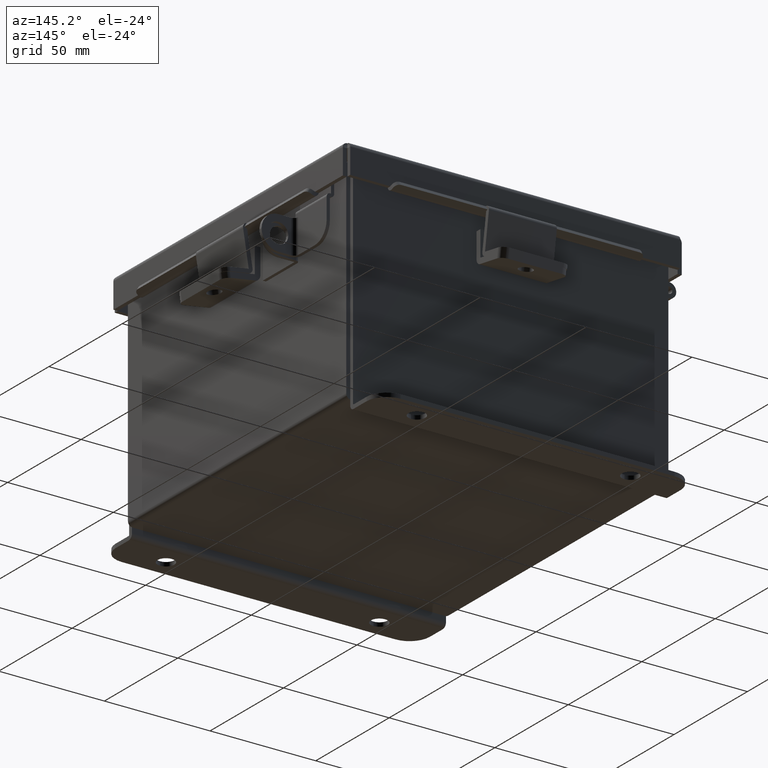
[diagram: clean part render]
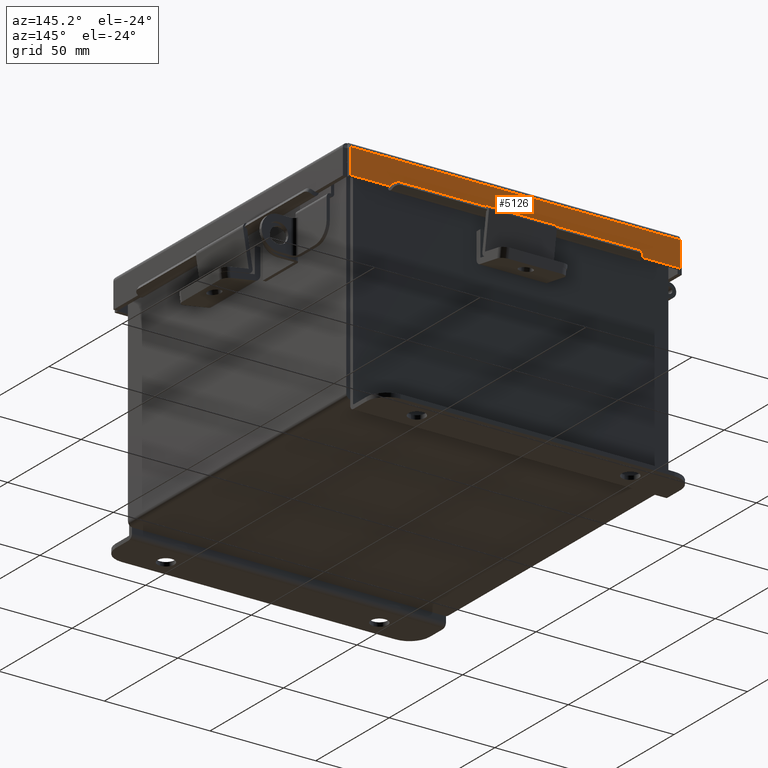
[diagram: same view with one face highlighted and labeled with its STEP entity id]
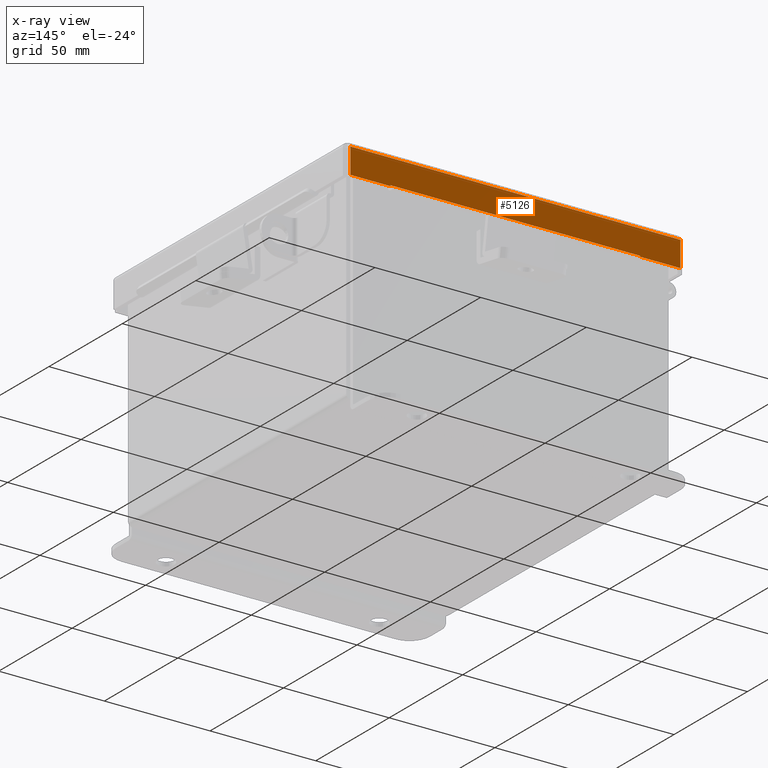
[diagram: x-ray of the same camera — body ghosted, the highlighted face saturated]
A machine part, auxiliary view. The second image highlights one B-rep face of the part: STEP entity #5126.
The next image is the same camera in x-ray: the body ghosted, the highlighted face saturated — about 0% of this face is hidden behind the body in this view.
In plain terms, the highlighted planar face has unit normal (-0, -1, -0).
Its self-contained STEP definition (entity closure, byte-faithful):
#766 = VECTOR ( 'NONE', #6378, 39.37007874015748100 ) ;
#876 = CARTESIAN_POINT ( 'NONE',  ( -2.324478932188135200, 3.156250000000001800, 0.4717115427318805400 ) ) ;
#879 = ORIENTED_EDGE ( 'NONE', *, *, #11664, .T. ) ;
#958 = DIRECTION ( 'NONE',  ( -1.000000000000000000, -0.0000000000000000000, -0.0000000000000000000 ) ) ;
#1081 = FACE_OUTER_BOUND ( 'NONE', #2202, .T. ) ;
#1619 = VECTOR ( 'NONE', #8709, 39.37007874015748100 ) ;
#2202 = EDGE_LOOP ( 'NONE', ( #6027, #879, #9303, #3637, #7273, #8013, #11763, #4725 ) ) ;
#2248 = VECTOR ( 'NONE', #7475, 39.37007874015748100 ) ;
#2509 = EDGE_CURVE ( 'NONE', #3828, #4384, #12108, .T. ) ;
#3162 = CARTESIAN_POINT ( 'NONE',  ( 2.324478932188134700, 3.156250000000002700, 0.4717115427318805400 ) ) ;
#3375 = EDGE_CURVE ( 'NONE', #4517, #11753, #5414, .T. ) ;
#3403 = CARTESIAN_POINT ( 'NONE',  ( 3.074478932188135200, 3.156250000000000000, 0.01299999999999985900 ) ) ;
#3622 = AXIS2_PLACEMENT_3D ( 'NONE', #7963, #11260, #4664 ) ;
#3637 = ORIENTED_EDGE ( 'NONE', *, *, #13452, .F. ) ;
#3686 = EDGE_CURVE ( 'NONE', #4494, #10448, #7477, .T. ) ;
#3828 = VERTEX_POINT ( 'NONE', #7848 ) ;
#3997 = CARTESIAN_POINT ( 'NONE',  ( 7.658911662237355500E-018, 3.156250000000001800, 0.4872999999999997900 ) ) ;
#4384 = VERTEX_POINT ( 'NONE', #8647 ) ;
#4494 = VERTEX_POINT ( 'NONE', #3403 ) ;
#4517 = VERTEX_POINT ( 'NONE', #8983 ) ;
#4648 = VECTOR ( 'NONE', #11503, 39.37007874015748100 ) ;
#4664 = DIRECTION ( 'NONE',  ( 0.0000000000000000000, -3.363654414526077700E-015, -1.000000000000000000 ) ) ;
#4725 = ORIENTED_EDGE ( 'NONE', *, *, #7637, .F. ) ;
#4998 = LINE ( 'NONE', #6035, #4648 ) ;
#5108 = DIRECTION ( 'NONE',  ( 1.000000000000000000, 0.0000000000000000000, 1.081919997490797700E-017 ) ) ;
#5126 = ADVANCED_FACE ( 'NONE', ( #1081 ), #6856, .F. ) ;
#5414 = LINE ( 'NONE', #13496, #14181 ) ;
#6027 = ORIENTED_EDGE ( 'NONE', *, *, #3375, .F. ) ;
#6035 = CARTESIAN_POINT ( 'NONE',  ( 7.658911662237355500E-018, 3.156250000000001800, 0.4872999999999997900 ) ) ;
#6215 = VECTOR ( 'NONE', #5108, 39.37007874015748100 ) ;
#6310 = EDGE_CURVE ( 'NONE', #7018, #7517, #8098, .T. ) ;
#6378 = DIRECTION ( 'NONE',  ( 0.0000000000000000000, 3.363654414526077700E-015, 1.000000000000000000 ) ) ;
#6856 = PLANE ( 'NONE',  #3622 ) ;
#7018 = VERTEX_POINT ( 'NONE', #876 ) ;
#7273 = ORIENTED_EDGE ( 'NONE', *, *, #2509, .T. ) ;
#7475 = DIRECTION ( 'NONE',  ( -7.009925220121116200E-014, -7.009925220121116200E-014, 1.000000000000000000 ) ) ;
#7477 = LINE ( 'NONE', #10920, #1619 ) ;
#7517 = VERTEX_POINT ( 'NONE', #10665 ) ;
#7637 = EDGE_CURVE ( 'NONE', #11753, #7018, #14075, .T. ) ;
#7848 = CARTESIAN_POINT ( 'NONE',  ( -3.074478932188136100, 3.156250000000000000, 0.01299999999999986400 ) ) ;
#7870 = CARTESIAN_POINT ( 'NONE',  ( 3.156249999999998200, 3.156250000000000000, 0.01299999999999986400 ) ) ;
#7963 = CARTESIAN_POINT ( 'NONE',  ( 1.293110781001012800E-017, 3.156250000000000000, -1.087734790185951700E-014 ) ) ;
#8013 = ORIENTED_EDGE ( 'NONE', *, *, #11536, .T. ) ;
#8098 = LINE ( 'NONE', #11788, #2248 ) ;
#8234 = VECTOR ( 'NONE', #958, 39.37007874015748100 ) ;
#8572 = CARTESIAN_POINT ( 'NONE',  ( -3.074478932188136100, 3.156250000000000000, -1.087734790185951700E-014 ) ) ;
#8647 = CARTESIAN_POINT ( 'NONE',  ( -3.074478932188136100, 3.156250000000001800, 0.4872999999999997300 ) ) ;
#8709 = DIRECTION ( 'NONE',  ( -0.0000000000000000000, 3.363654414526077700E-015, 1.000000000000000000 ) ) ;
#8983 = CARTESIAN_POINT ( 'NONE',  ( 2.324478932188135200, 3.156250000000001800, 0.4872999999999997900 ) ) ;
#9131 = LINE ( 'NONE', #3997, #6215 ) ;
#9303 = ORIENTED_EDGE ( 'NONE', *, *, #3686, .F. ) ;
#9646 = CARTESIAN_POINT ( 'NONE',  ( 2.324478932188135200, 3.156250000000001800, 0.4717115427318805400 ) ) ;
#9968 = LINE ( 'NONE', #7870, #12516 ) ;
#10448 = VERTEX_POINT ( 'NONE', #12082 ) ;
#10665 = CARTESIAN_POINT ( 'NONE',  ( -2.324478932188136100, 3.156250000000001800, 0.4872999999999997900 ) ) ;
#10920 = CARTESIAN_POINT ( 'NONE',  ( 3.074478932188135200, 3.156250000000000000, -2.512649847650985800E-016 ) ) ;
#11260 = DIRECTION ( 'NONE',  ( -3.639204975723964100E-032, -1.000000000000000000, 3.363654414526077700E-015 ) ) ;
#11503 = DIRECTION ( 'NONE',  ( 1.000000000000000000, 0.0000000000000000000, 1.081919997490797700E-017 ) ) ;
#11536 = EDGE_CURVE ( 'NONE', #4384, #7517, #4998, .T. ) ;
#11664 = EDGE_CURVE ( 'NONE', #4517, #10448, #9131, .T. ) ;
#11753 = VERTEX_POINT ( 'NONE', #9646 ) ;
#11763 = ORIENTED_EDGE ( 'NONE', *, *, #6310, .F. ) ;
#11788 = CARTESIAN_POINT ( 'NONE',  ( -2.324478932188135200, 3.156250000000002700, 0.4717115427318805400 ) ) ;
#12082 = CARTESIAN_POINT ( 'NONE',  ( 3.074478932188135200, 3.156250000000001800, 0.4872999999999997900 ) ) ;
#12108 = LINE ( 'NONE', #8572, #766 ) ;
#12516 = VECTOR ( 'NONE', #13381, 39.37007874015748100 ) ;
#13381 = DIRECTION ( 'NONE',  ( 1.000000000000000000, -3.639204975723964100E-032, 1.189815042988946500E-046 ) ) ;
#13452 = EDGE_CURVE ( 'NONE', #3828, #4494, #9968, .T. ) ;
#13496 = CARTESIAN_POINT ( 'NONE',  ( 2.324478932188135200, 3.156250000000002200, 0.4872999999999999000 ) ) ;
#13543 = DIRECTION ( 'NONE',  ( 0.0000000000000000000, 3.504962610060573200E-014, -1.000000000000000000 ) ) ;
#14075 = LINE ( 'NONE', #3162, #8234 ) ;
#14181 = VECTOR ( 'NONE', #13543, 39.37007874015748100 ) ;